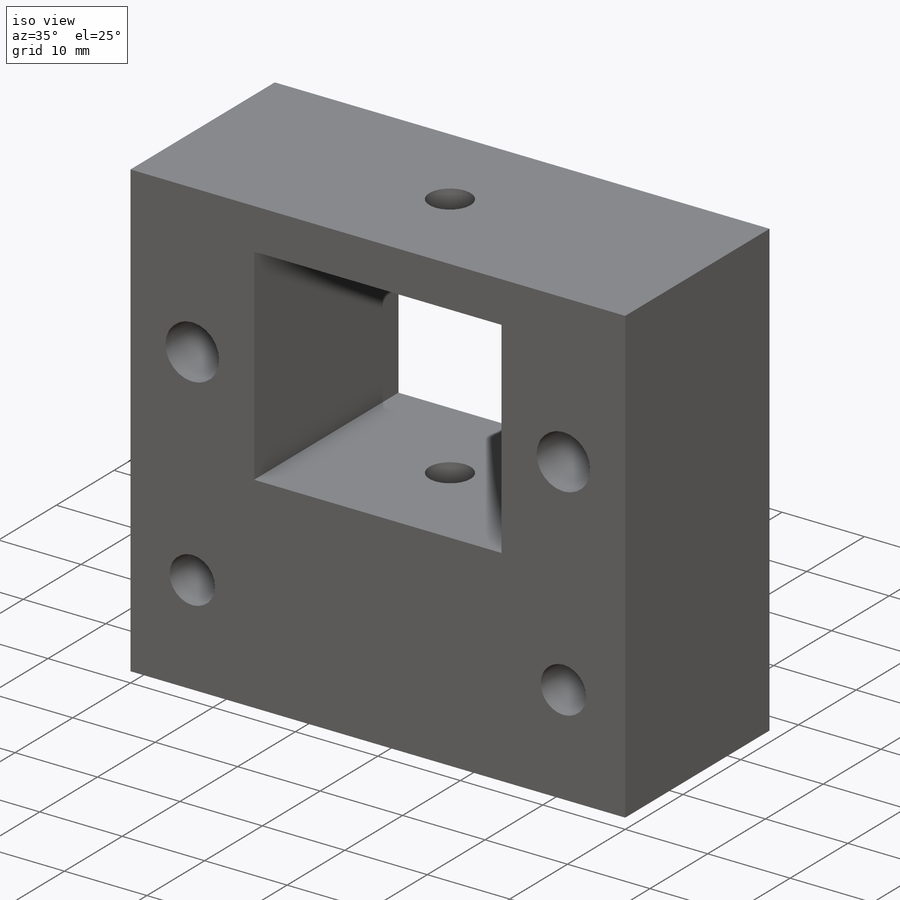
[diagram: iso view]
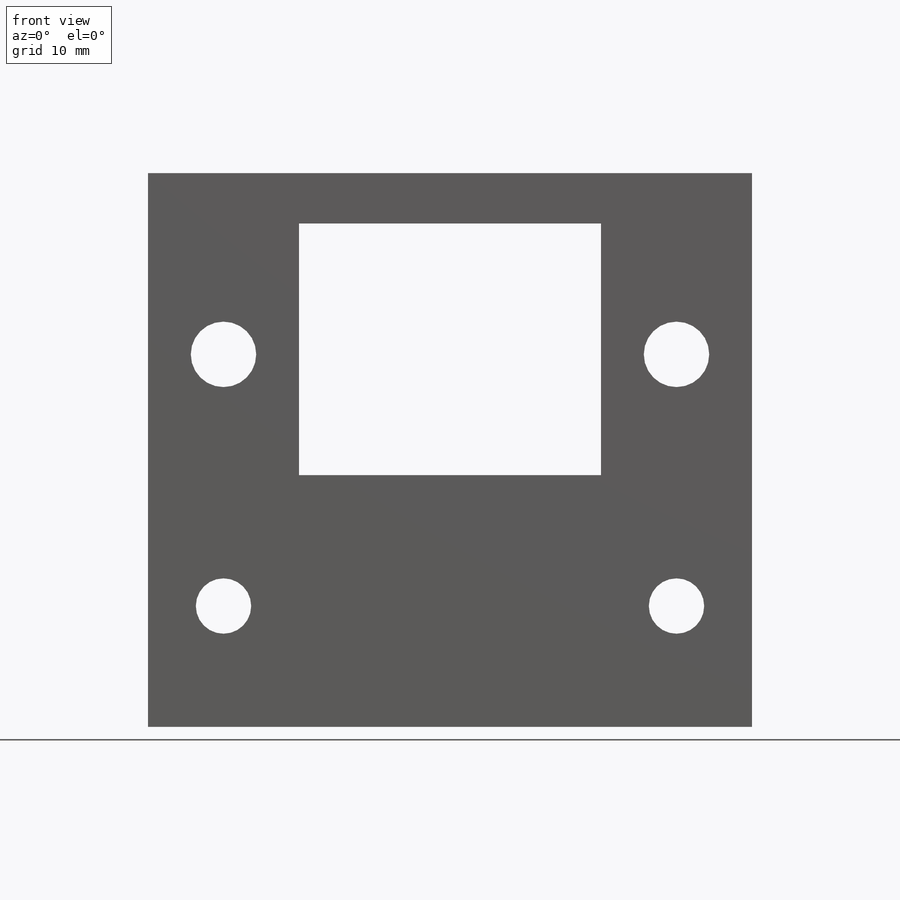
[diagram: front view]
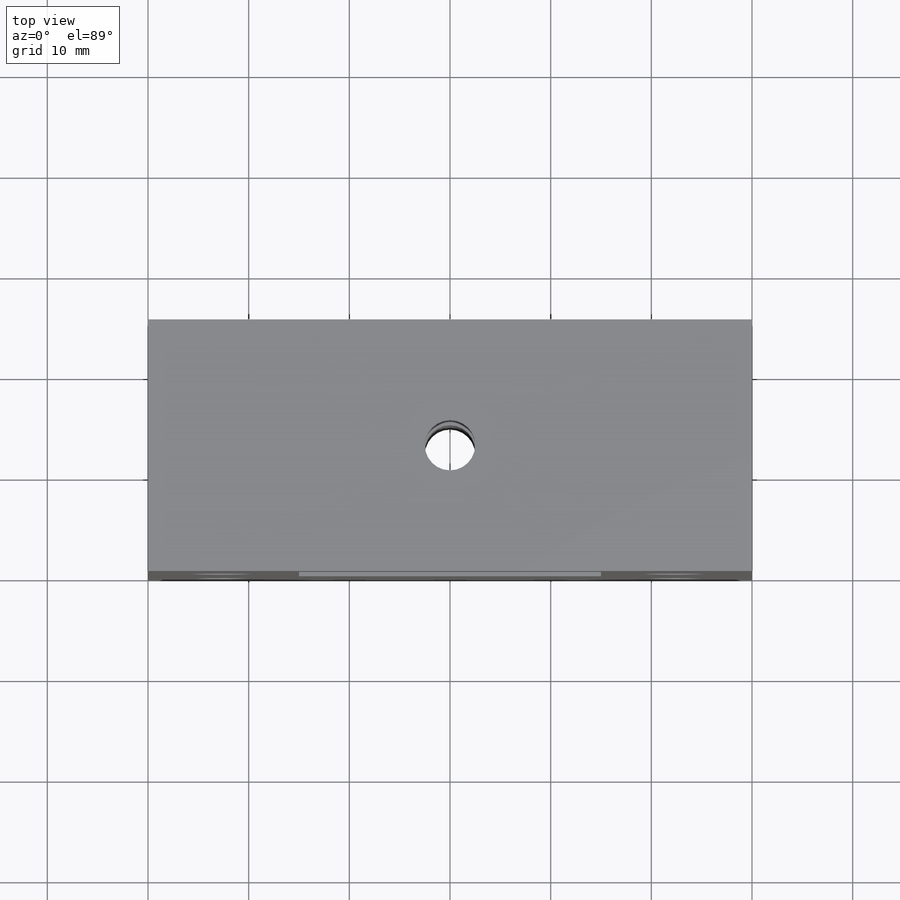
[diagram: top view]
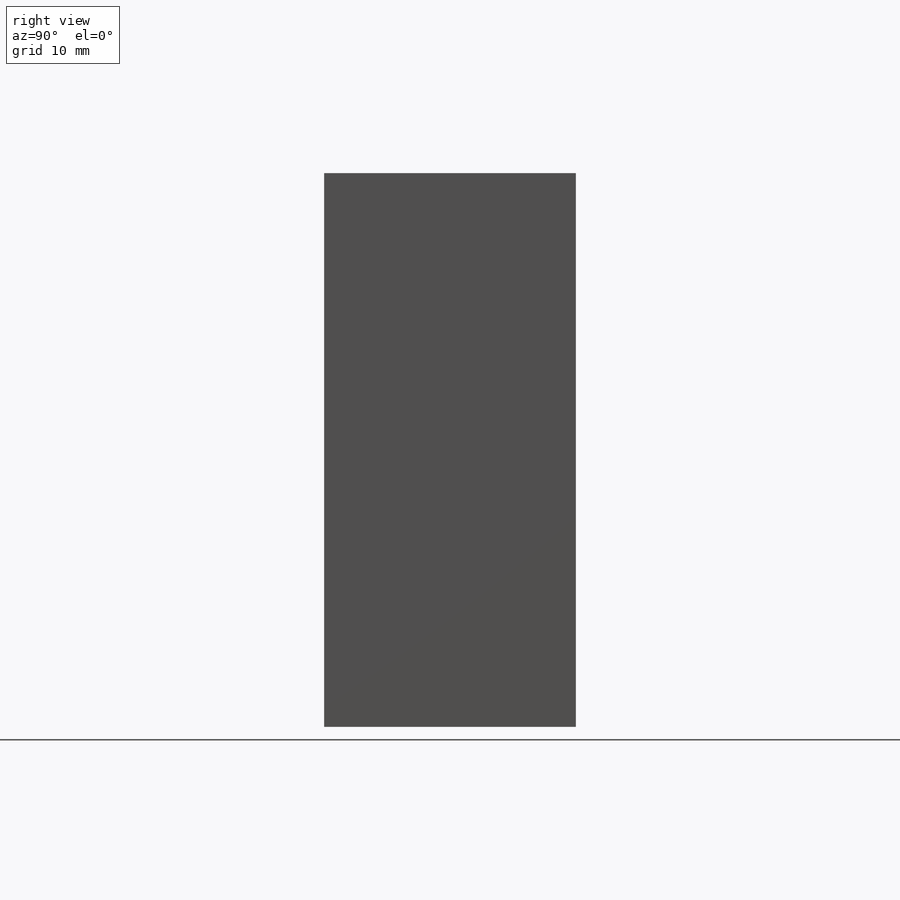
[diagram: right view]
SOLIDWORKS PART (.sldprt)
format: sldprt  version: not decoded by parser v0  size: 242,176 bytes
history: native  units: mm
features: sketch x5, cut_extrude x4, material x1, extrude x1 (+12 scaffold rows collapsed)
feature tree (23):
  scaffold x12  (default folders/planes/origin — collapsed)
  material  "ABS PC"
  sketch  "Sketch2"  dims[c1.D1=~31.293729mm c1.D2=~55.633296mm c2.D1=25.0mm c2.D2=60.0mm]
  extrude  "Boss-Extrude1"  Depth=55mm
  sketch  "Sketch3"  dims[c1.D1=~12.103974mm c1.D2=~29.281186mm c2.D1=30.0mm c2.D2=15.0mm c2.D3=25.0mm c2.D4=5.0mm]
  cut_extrude  "Cut-Extrude1"  [1 undecoded]
  sketch  "Sketch4"  dims[c1.D1=5.0mm c1.D2=5.0mm c1.D3=5.0mm c2.D2=12.5mm c2.D3=30.0mm]
  cut_extrude  "Cut-Extrude2"  [1 undecoded]
  sketch  "Sketch5"  dims[c1.D1=5.5mm c1.D2=5.5mm c1.D3=5.5mm c1.D4=5.5mm c1.D5=5.5mm c1.D6=6.5mm c2.D4=5.5mm c2.D2=7.5mm c2.D3=7.5mm c3.D4=18.0mm c3.D5=25.0mm c4.D4=12.0mm]
  cut_extrude  "Cut-Extrude3"  [1 undecoded]
  sketch  "Sketch9"  dims[D1=8.9mm]
  cut_extrude  "Cut-Extrude7"  Depth=11.5mm
decode coverage: 7 of 10 modeling features carry decoded parameters
note: ~ marks probable driven/reference dimensions
note: 3 parameter values undecoded
summary: no parameter record found for 3 features
note: suppression state not decoded; provenance and decode notes live in map.json
